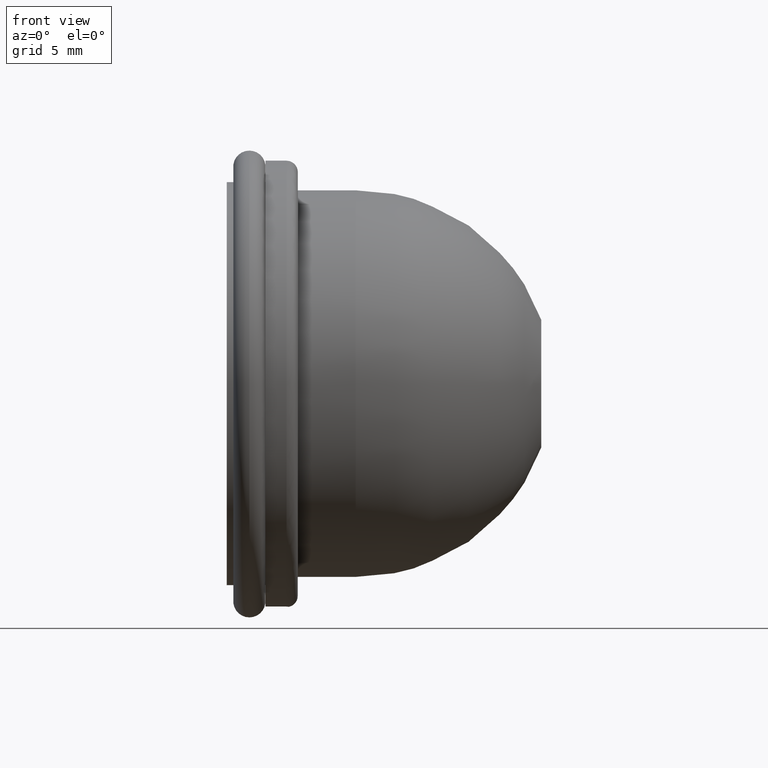
[diagram: clean part render]
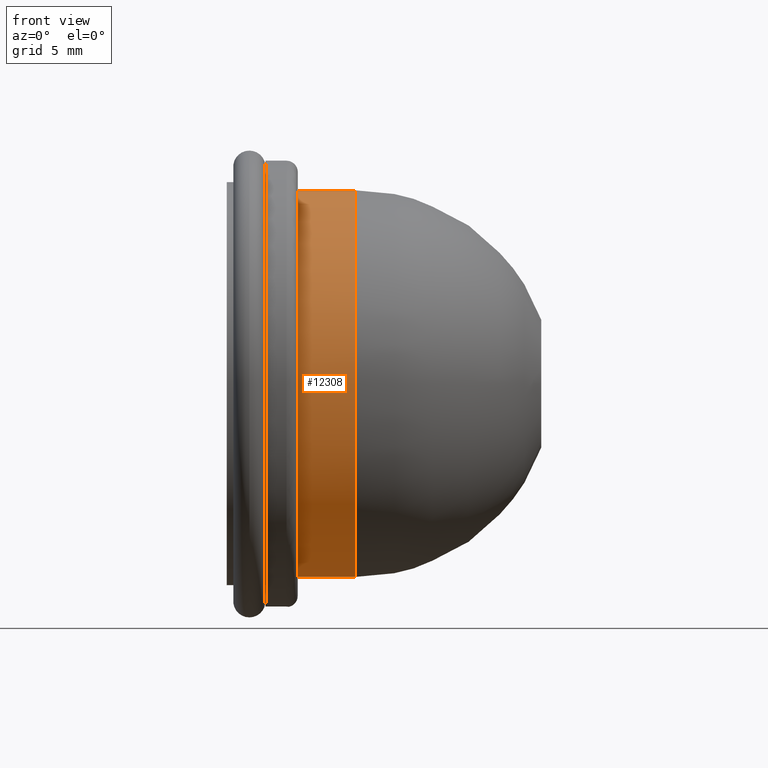
[diagram: same view with one face highlighted and labeled with its STEP entity id]
A machine part, front view. The second image highlights one B-rep face of the part: STEP entity #12308.
In plain terms, the highlighted cylindrical surface (bore or boss wall) has radius 12 mm, axis along (1, 0, 0).
Its self-contained STEP definition (entity closure, byte-faithful):
#12277=CARTESIAN_POINT('',(-18.061170513570104,15.867980793193075,0.0));
#12278=VERTEX_POINT('',#12277);
#12279=CARTESIAN_POINT('',(-18.061170513570104,3.867980793193076,0.0));
#12280=DIRECTION('',(1.0,0.0,0.0));
#12281=DIRECTION('',(0.0,1.0,0.0));
#12282=AXIS2_PLACEMENT_3D('',#12279,#12280,#12281);
#12283=CIRCLE('',#12282,12.0);
#12284=EDGE_CURVE('',#12278,#12278,#12283,.T.);
#12289=CARTESIAN_POINT('',(-16.261170513570104,3.867980793193076,0.0));
#12290=DIRECTION('',(1.0,0.0,0.0));
#12291=DIRECTION('',(0.0,1.0,0.0));
#12292=AXIS2_PLACEMENT_3D('',#12289,#12290,#12291);
#12293=CYLINDRICAL_SURFACE('',#12292,12.000000000000002);
#12294=CARTESIAN_POINT('',(-14.461170513570101,15.867980793193080,0.0));
#12295=VERTEX_POINT('',#12294);
#12296=CARTESIAN_POINT('',(-14.461170513570101,3.867980793193076,0.0));
#12297=DIRECTION('',(1.0,0.0,0.0));
#12298=DIRECTION('',(0.0,1.0,0.0));
#12299=AXIS2_PLACEMENT_3D('',#12296,#12297,#12298);
#12300=CIRCLE('',#12299,12.000000000000004);
#12301=EDGE_CURVE('',#12295,#12295,#12300,.T.);
#12302=ORIENTED_EDGE('',*,*,#12301,.F.);
#12303=EDGE_LOOP('',(#12302));
#12304=FACE_OUTER_BOUND('',#12303,.T.);
#12305=ORIENTED_EDGE('',*,*,#12284,.T.);
#12306=EDGE_LOOP('',(#12305));
#12307=FACE_BOUND('',#12306,.T.);
#12308=ADVANCED_FACE('',(#12304,#12307),#12293,.T.);